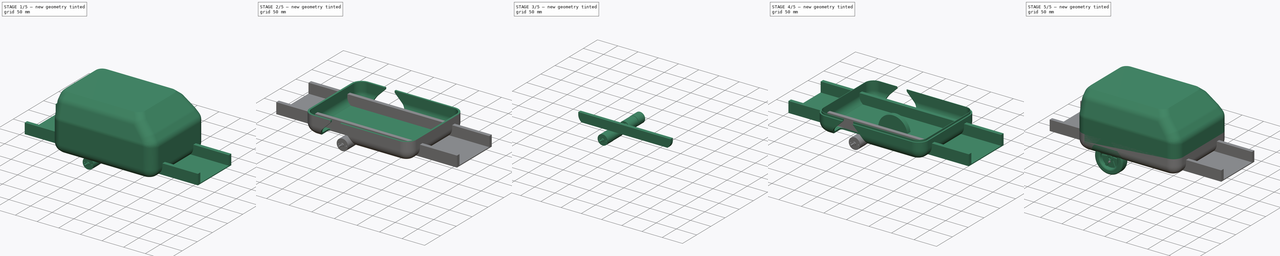
[diagram: build sequence overview — one tinted view per stage of 5, left to right]
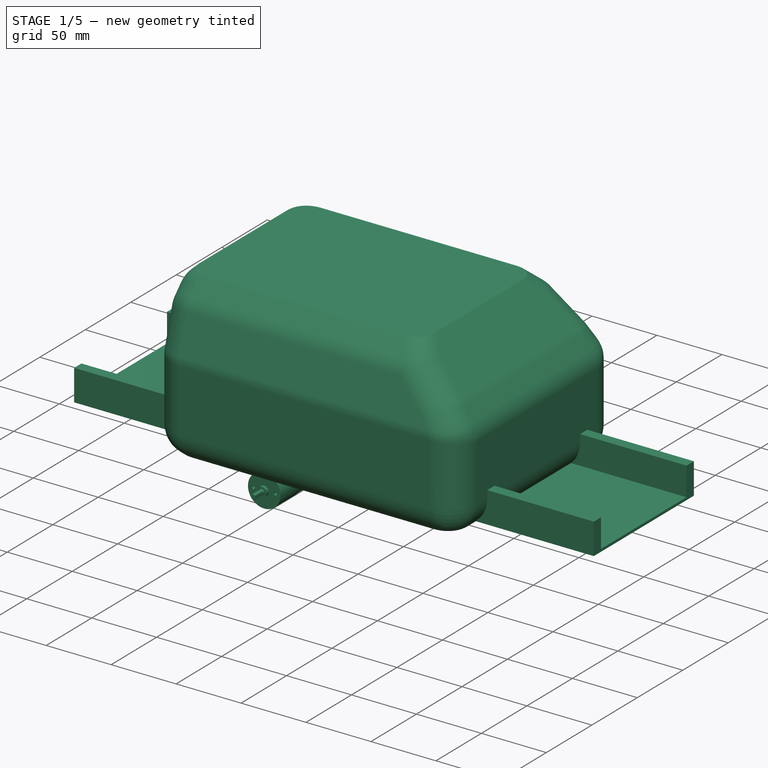
[diagram: stage 1 of 5 — iso view after this stage's code; geometry added in this stage tinted green]
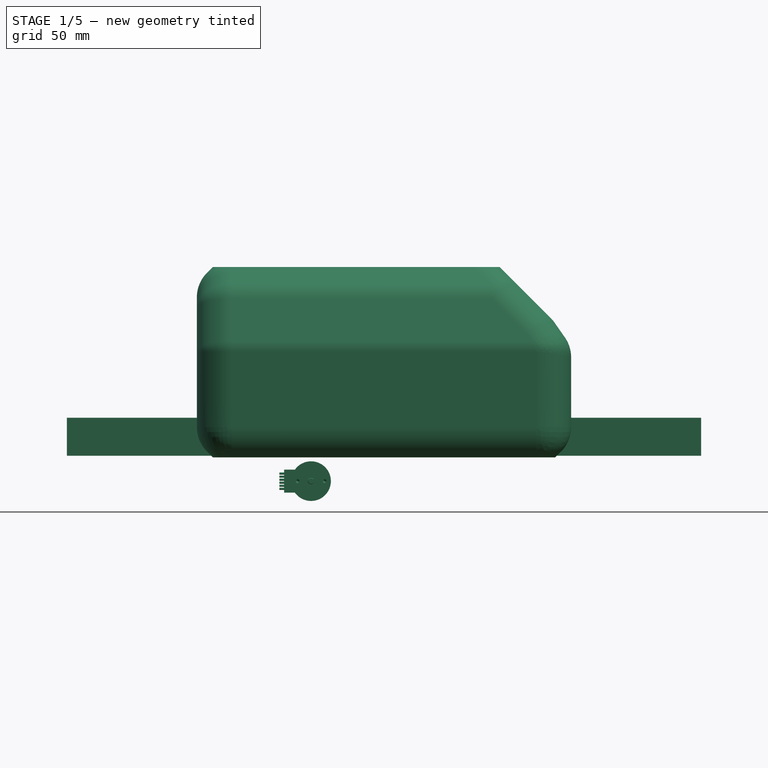
[diagram: stage 1 of 5 — front view after this stage's code; geometry added in this stage tinted green]
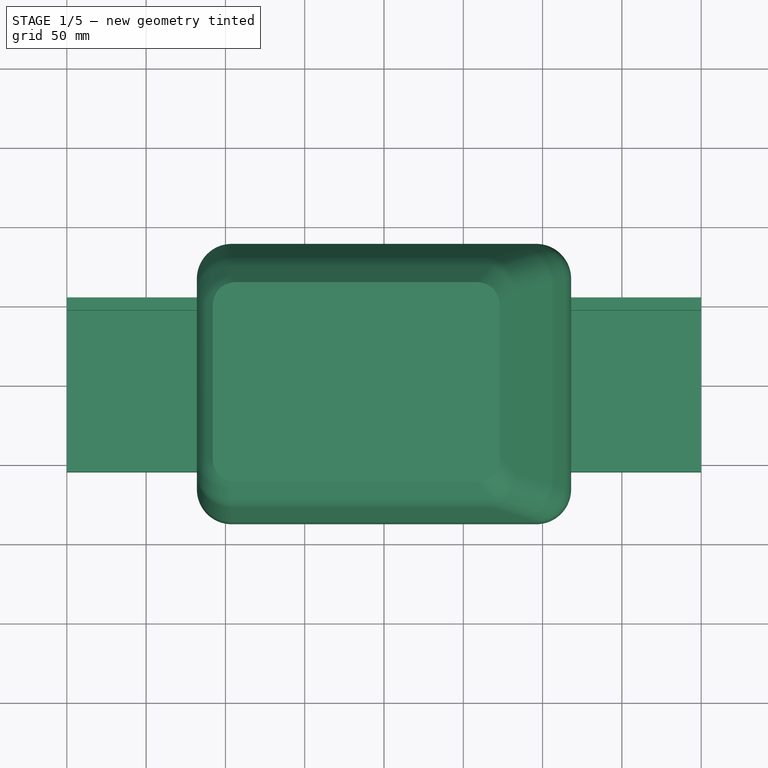
[diagram: stage 1 of 5 — top view after this stage's code; geometry added in this stage tinted green]
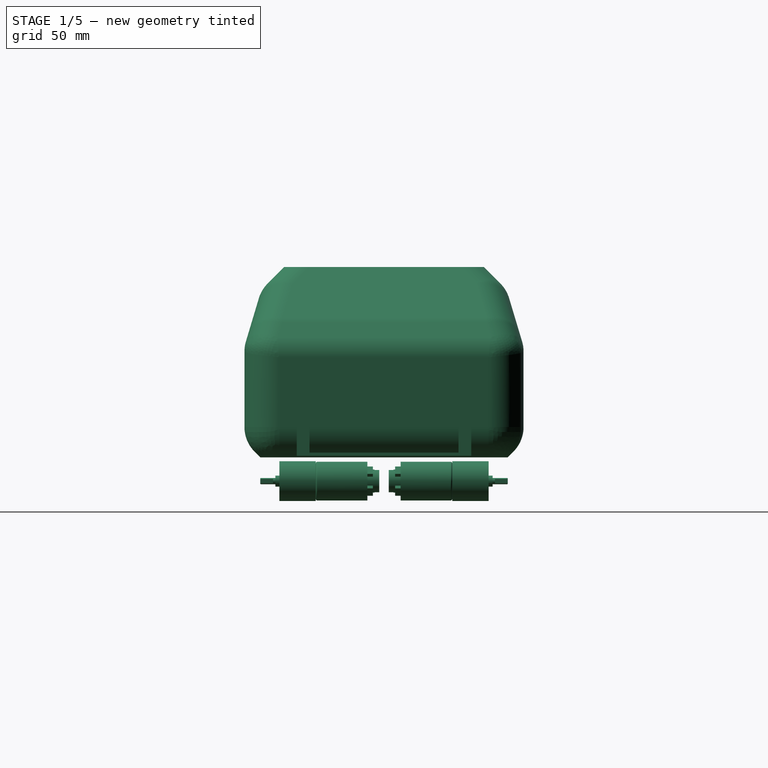
[diagram: stage 1 of 5 — right view after this stage's code; geometry added in this stage tinted green]
FCSTD DOCUMENT  (FreeCAD 0.20R29177 +426 (Git))
Label: bot_4
License: All rights reserved
LicenseURL: http://en.wikipedia.org/wiki/All_rights_reserved
objects: Part::Feature×37, Part::FeaturePython×11, Sketcher::SketchObject×10, PartDesign::Body×8, PartDesign::Pad×7, PartDesign::Pocket×4, PartDesign::Fillet×4, PartDesign::FeatureBase×4, PartDesign::Chamfer×3, PartDesign::Mirrored×2, App::DocumentObjectGroup×2, PartDesign::Thickness×2, Part::Compound2×2, Part::Plane×1, PartDesign::PolarPattern×1, App::Part×1, Part::Mirroring×1, Part::MultiFuse×1, Part::Cut×1
note: 117 computed .brp shape members not serialized (recipe doc carries the construction recipe); baked Part::Feature solids carry a one-line shape summary decoded from their .brp

FEATURE [Sketcher::SketchObject] Sketch
  FullyConstrained = true
  MapMode = 5
  Support = -> [XY_Plane]
  sketch-geometry (4):
    g0: LineSegment StartX=-118 StartY=88 StartZ=0 EndX=118 EndY=88 EndZ=0
    g1: LineSegment StartX=118 StartY=88 StartZ=0 EndX=118 EndY=-88 EndZ=0
    g2: LineSegment StartX=118 StartY=-88 StartZ=0 EndX=-118 EndY=-88 EndZ=0
    g3: LineSegment StartX=-118 StartY=-88 StartZ=0 EndX=-118 EndY=88 EndZ=0
  constraints (11):
    c: Coincident(g0,g1)
    c: Coincident(g1,g2)
    c: Coincident(g2,g3)
    c: Coincident(g3,g0)
    c: Horizontal(g0)
    c: Horizontal(g2)
    c: Vertical(g1)
    c: Vertical(g3)
    c: Symmetric(g0,g1,g-1)
    c: DistanceX(g0,g0) = 236
    c: DistanceY(g3,g3) = 176
FEATURE [PartDesign::Pad] Pad
  Direction = (0,0,1)
  Length = 120
  Length2 = 10
  Profile = -> Sketch
  ReferenceAxis = -> Sketch [N_Axis]
  Type = 0
FEATURE [Sketcher::SketchObject] Sketch001
  FullyConstrained = true
  MapMode = 5
  Placement = pos=(0,-88,0) rot=(1,0,0;1.5708rad)
  Support = -> [Pad]
  sketch-geometry (1):
    g0: Circle CenterX=-46 CenterY=-8 CenterZ=0 NormalX=0 NormalY=0 NormalZ=1 AngleXU=0 Radius=38
  constraints (3):
    c: DistanceY(g0,g-1) = 8
    c: DistanceX(g0,g-1) = 46
    c: Diameter(g0) = 76
FEATURE [PartDesign::Chamfer] Chamfer
  Angle = 45
  Base = -> Pad [Edge10,Edge4]
  BaseFeature = -> Pad
  ChamferType = 1
  FlipDirection = true
  Size = 15
  Size2 = 50
  SupportTransform = false
  UseAllEdges = false
FEATURE [PartDesign::Chamfer] Chamfer001
  Angle = 45
  Base = -> Chamfer [Edge14]
  BaseFeature = -> Chamfer
  ChamferType = 1
  FlipDirection = false
  Size = 50
  Size2 = 35
  SupportTransform = false
  UseAllEdges = false
FEATURE [Part::Feature] L298N_Motor_Driver
  Placement = pos=(-31.3884,-18.295,6.51084) rot=(0.57735,0.57735,0.57735;2.0944rad)
  shape: bbox 43 x 43 x 28.01 mm, 1116 faces, 0 solids (baked)
FEATURE [Part::Feature] Feature  label="Arduino nano001"
  Placement = pos=(29,23,28) rot=(0,0.707107,0.707107;3.14159rad)
  shape: bbox 44.95 x 17.81 x 20.74 mm, 6942 faces, 133 solids (baked)
FEATURE [Part::Feature] Feature001  label="Raspberry Pi 4 Model B001"
  Placement = pos=(61,-16,5) rot=(0,0.707107,0.707107;3.14159rad)
  shape: bbox 89 x 58.41 x 19.91 mm, 10487 faces, 109 solids (baked)
FEATURE [PartDesign::Chamfer] Chamfer002
  Angle = 45
  Base = -> Chamfer001 [Face2,Face9]
  BaseFeature = -> Chamfer001
  ChamferType = 2
  FlipDirection = false
  Size = 10
  Size2 = 1
  SupportTransform = false
  UseAllEdges = false
FEATURE [PartDesign::Fillet] Fillet
  Base = -> Chamfer002 [Edge30,Edge23,Edge22,Edge27,Edge21,Edge26,Edge19,Edge16,Edge18,Edge4,Edge5,Edge13,Edge3,Edge20,Edge31,Edge14,Edge35,Edge34,Edge38,Edge24,Edge25,Edge7,Edge8,Edge12,Edge6,Edge11,Edge9,Edge2,Edge1,Edge15,Edge33]
  BaseFeature = -> Chamfer002
  Radius = 22
  SupportTransform = false
  UseAllEdges = false
FEATURE [Part::FeaturePython] Slice002  # WARN: FeaturePython — macro-defined, semantics opaque (R4)
  Base = -> Fillet
  Mode = 1
  Tolerance = 0
  Tools = -> [Plane001]
FEATURE [Sketcher::SketchObject] Sketch014
  FullyConstrained = true
  MapMode = 5
  Placement = pos=(0,0,0) rot=(0.57735,0.57735,0.57735;2.0944rad)
  Support = -> [YZ_Plane009]
  sketch-geometry (4):
    g0: LineSegment StartX=50 StartY=2 StartZ=0 EndX=42 EndY=2 EndZ=0
    g1: LineSegment StartX=42 StartY=2 StartZ=0 EndX=42 EndY=25 EndZ=0
    g2: LineSegment StartX=42 StartY=25 StartZ=0 EndX=50 EndY=25 EndZ=0
    g3: LineSegment StartX=50 StartY=25 StartZ=0 EndX=50 EndY=2 EndZ=0
  constraints (12):
    c: Coincident(g0,g1)
    c: Coincident(g1,g2)
    c: Coincident(g2,g3)
    c: Coincident(g3,g0)
    c: Horizontal(g0)
    c: Horizontal(g2)
    c: Vertical(g1)
    c: Vertical(g3)
    c: DistanceX(g-1,g0) = 50
    c: DistanceY(g-1,g0) = 2
    c: DistanceX(g2,g2) = 8
    c: DistanceY(g-1,g1) = 25
FEATURE [PartDesign::Body] Body008
  BaseFeature = -> Cut
  Group = -> [BaseFeature,Sketch014]
  Origin = -> Origin009
  Tip = -> BaseFeature
FEATURE [Sketcher::SketchObject] Sketch015
  FullyConstrained = true
  MapMode = 5
  Placement = pos=(0,0,0) rot=(0.57735,0.57735,0.57735;2.0944rad)
  Support = -> [YZ_Plane010]
  sketch-geometry (8):
    g0: LineSegment StartX=55 StartY=25 StartZ=0 EndX=47 EndY=25 EndZ=0
    g1: LineSegment StartX=47 StartY=25 StartZ=0 EndX=47 EndY=3 EndZ=0
    g2: LineSegment StartX=47 StartY=3 StartZ=0 EndX=-47 EndY=3 EndZ=0
    g3: LineSegment StartX=-47 StartY=3 StartZ=0 EndX=-47 EndY=25 EndZ=0
    g4: LineSegment StartX=-47 StartY=25 StartZ=0 EndX=-55 EndY=25 EndZ=0
    g5: LineSegment StartX=-55 StartY=25 StartZ=0 EndX=-55 EndY=1 EndZ=0
    g6: LineSegment StartX=-55 StartY=1 StartZ=0 EndX=55 EndY=1 EndZ=0
    g7: LineSegment StartX=55 StartY=1 StartZ=0 EndX=55 EndY=25 EndZ=0
  constraints (20):
    c: Horizontal(g0)
    c: Coincident(g0,g1)
    c: Vertical(g1)
    c: Coincident(g1,g2)
    c: Coincident(g2,g3)
    c: Coincident(g3,g4)
    c: Coincident(g4,g5)
    c: Coincident(g5,g6)
    c: Coincident(g6,g7)
    c: Coincident(g7,g0)
    c: Vertical(g7)
    c: Symmetric(g0,g4,g-2)
    c: Symmetric(g0,g3,g-2)
    c: Symmetric(g1,g2,g-2)
    c: Symmetric(g6,g5,g-2)
    c: DistanceX(g0,g0) = 8
    c: DistanceY(g-1,g0) = 25
    c: DistanceY(g-1,g1) = 3
    c: DistanceY(g-1,g6) = 1
    c: DistanceX(g-1,g6) = 55
FEATURE [PartDesign::Pad] Pad007
  Direction = (1,-2e-16,3e-16)
  Length = 200
  Length2 = 200
  Placement = pos=(0,0,0) rot=(0.57735,0.57735,0.57735;2.0944rad)
  Profile = -> Sketch015
  ReferenceAxis = -> Sketch015 [N_Axis]
  Type = 4
FEATURE [PartDesign::Body] Body010  label="Base_Groove_Ribs"
  BaseFeature = -> Connect
  Group = -> [BaseFeature004]
  Origin = -> Origin011
  Tip = -> BaseFeature004
FEATURE [PartDesign::Body] Body011
  Origin = -> Origin012
FEATURE [Part::Feature] Feature002  label="65mm wheel"
  Placement = pos=(-46,-88,-15) rot=(0,0,1;4.71239rad)
  shape: bbox 68.08 x 31.85 x 68.08 mm, 3634 faces, 3 solids (baked)
FEATURE [Part::Feature] Solid
  shape: bbox 26.41 x 31 x 26.41 mm, 4 faces (baked)
FEATURE [Part::Feature] Solid001
  shape: bbox 24.4 x 1.5 x 24.4 mm, 3 faces (baked)
FEATURE [Part::Feature] Solid002
  shape: bbox 14 x 7.5 x 14 mm, 3 faces (baked)
FEATURE [Part::Feature] Solid003
  shape: bbox 6.364 x 3.5 x 6.364 mm, 6 faces (baked)
FEATURE [Part::Feature] Solid004
  shape: bbox 6.364 x 3.5 x 6.364 mm, 6 faces (baked)
FEATURE [Part::Feature] Solid005
  shape: bbox 14.5 x 4.5 x 8.5 mm, 6 faces (baked)
FEATURE [Part::Feature] Solid006 .. Solid011  x6 (patterned run collapsed; names and placements below)
  shape: bbox 1.4 x 1.4 x 3 mm, 3 faces (baked)
FEATURE [Part::Feature] Solid012
  shape: bbox 25 x 23 x 25 mm, 7 faces (baked)
FEATURE [Part::Feature] Solid013
  shape: bbox 7 x 2.5 x 7 mm, 3 faces (baked)
FEATURE [Part::Feature] Solid014
  shape: bbox 4 x 9.5 x 4 mm, 6 faces (baked)
FEATURE [Part::Compound2] Compound  label="JGA25-371_12VDC_110RPM"
  Links = -> [Solid,Solid001,Solid002,Solid003,Solid004,Solid005,Solid006,Solid007,Solid008,Solid009,Solid010,Solid011,Solid012,Solid013,Solid014]
  Placement = pos=(-46,-43,-15) rot=(-0.707107,0,-0.707107;3.14159rad)
FEATURE [Part::Feature] Feature003  label="Caster Ball Wheel001"
  Placement = pos=(82,1.07e-14,-34) rot=(0.57735,-0.57735,0.57735;4.18879rad)
  shape: bbox 34.64 x 47.66 x 15.6 mm, 46 faces, 2 solids (baked)
FEATURE [Part::Feature] Feature004  label="LD06_LiDAR002"
  Placement = pos=(-72,-16,116) rot=(0.57735,0.57735,0.57735;2.0944rad)
  shape: bbox 38.6 x 38.6 x 33.37 mm, 248 faces, 4 solids (baked)
FEATURE [Part::Feature] Feature005  label="65mm wheel001"
  Placement = pos=(-46,88,-15) rot=(-0.707107,-0.707107,0;3.14159rad)
  shape: bbox 68.08 x 31.85 x 68.08 mm, 3634 faces, 3 solids (baked)
FEATURE [Part::Feature] Solid015
  shape: bbox 26.41 x 31 x 26.41 mm, 4 faces (baked)
FEATURE [Part::Feature] Solid016
  shape: bbox 24.4 x 1.5 x 24.4 mm, 3 faces (baked)
FEATURE [Part::Feature] Solid017
  shape: bbox 14 x 7.5 x 14 mm, 3 faces (baked)
FEATURE [Part::Feature] Solid018
  shape: bbox 6.364 x 3.5 x 6.364 mm, 6 faces (baked)
FEATURE [Part::Feature] Solid019
  shape: bbox 6.364 x 3.5 x 6.364 mm, 6 faces (baked)
FEATURE [Part::Feature] Solid020
  shape: bbox 14.5 x 4.5 x 8.5 mm, 6 faces (baked)
FEATURE [Part::Feature] Solid021 .. Solid026  x6 (patterned run collapsed; names and placements below)
  shape: bbox 1.4 x 1.4 x 3 mm, 3 faces (baked)
FEATURE [Part::Feature] Solid027
  shape: bbox 25 x 23 x 25 mm, 7 faces (baked)
FEATURE [Part::Feature] Solid028
  shape: bbox 7 x 2.5 x 7 mm, 3 faces (baked)
FEATURE [Part::Feature] Solid029
  shape: bbox 4 x 9.5 x 4 mm, 6 faces (baked)
FEATURE [Part::Compound2] Compound001  label="JGA25-371_12VDC_110RPM001"
  Links = -> [Solid015,Solid016,Solid017,Solid018,Solid019,Solid020,Solid021,Solid022,Solid023,Solid024,Solid025,Solid026,Solid027,Solid028,Solid029]
  Placement = pos=(-46,43,-15) rot=(0,1,0;1.5708rad)
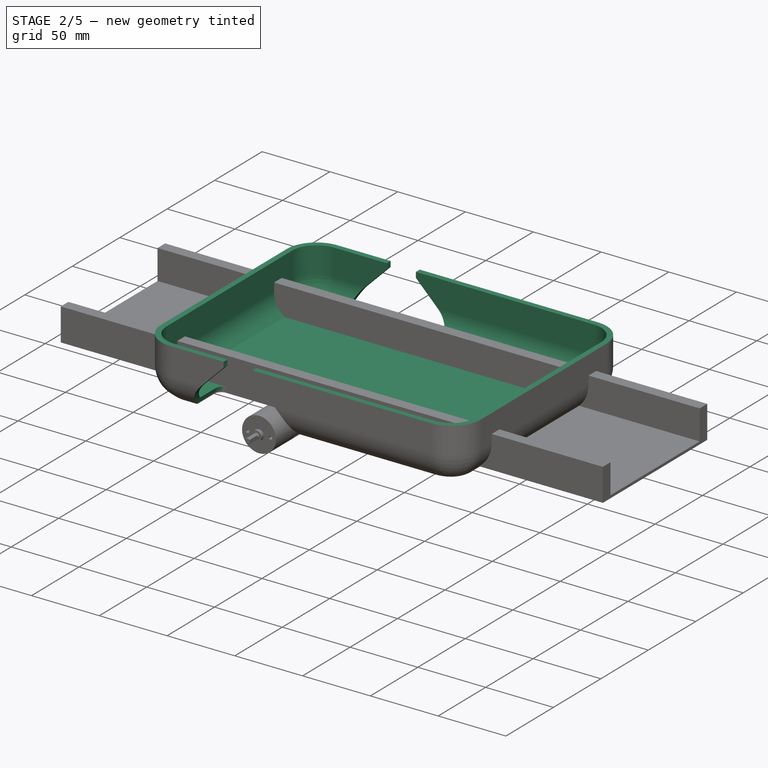
[diagram: stage 2 of 5 — iso view after this stage's code; geometry added in this stage tinted green]
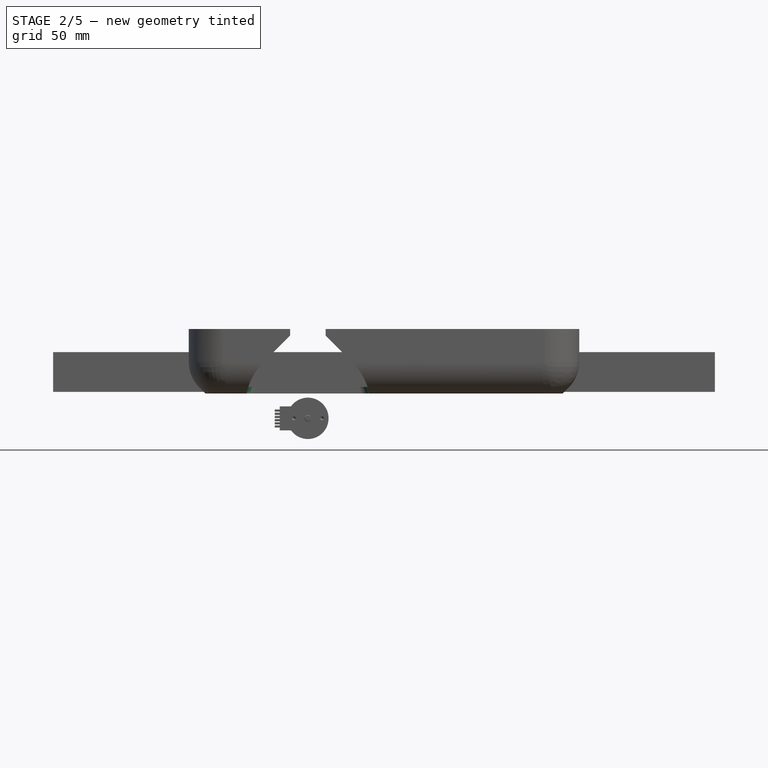
[diagram: stage 2 of 5 — front view after this stage's code; geometry added in this stage tinted green]
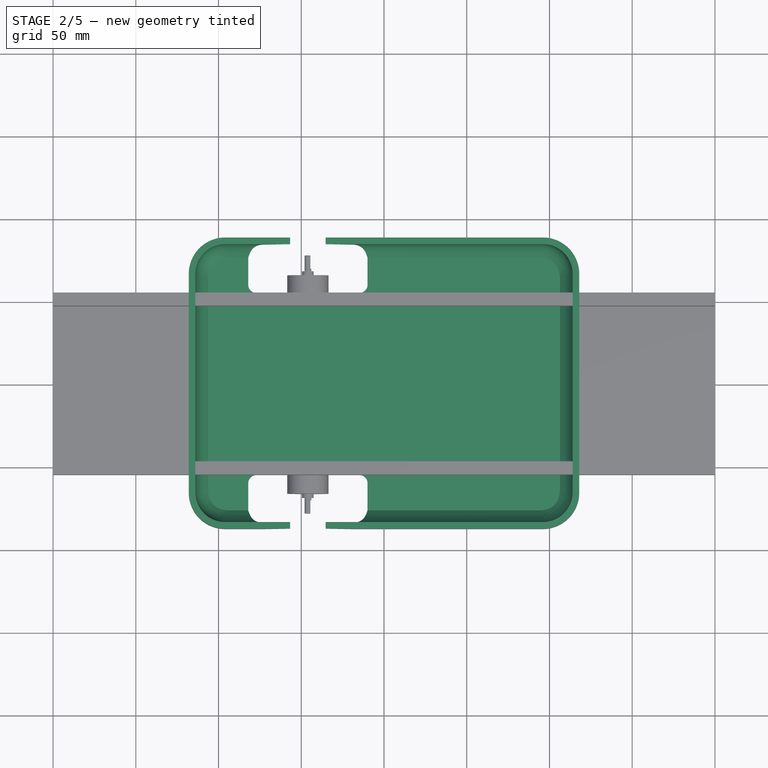
[diagram: stage 2 of 5 — top view after this stage's code; geometry added in this stage tinted green]
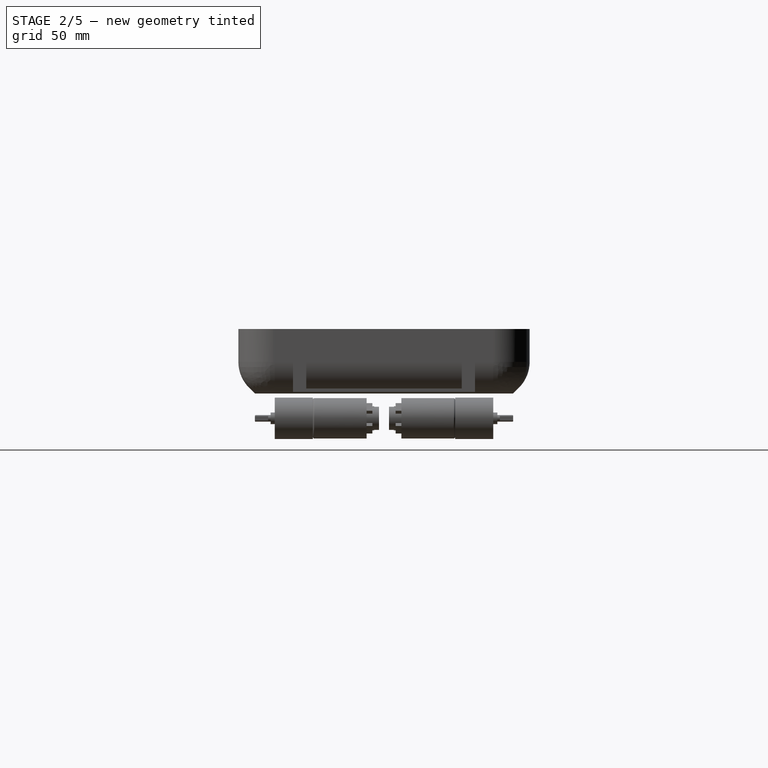
[diagram: stage 2 of 5 — right view after this stage's code; geometry added in this stage tinted green]
FEATURE [Part::FeaturePython] Slice002_child1  label="Slice002.1"  # WARN: FeaturePython — macro-defined, semantics opaque (R4)
  Base = -> Slice002
  FilterType = 1
  Invert = false
  OverrideMaxVal = 0
  WindowFrom = 80
  WindowTo = 100
  items = 1
FEATURE [PartDesign::FeatureBase] BaseFeature003
  BaseFeature = -> Slice002_child1
FEATURE [PartDesign::Body] Body006  label="Cap"
  BaseFeature = -> Slice002_child0
  Group = -> [BaseFeature002,Thickness001,Sketch009,Pocket003]
  Origin = -> Origin007
  Tip = -> Pocket003
FEATURE [PartDesign::Thickness] Thickness002
  Base = -> BaseFeature003 [Face5]
  BaseFeature = -> BaseFeature003
  Intersection = false
  Join = 0
  Mode = 0
  Reversed = true
  SupportTransform = false
  Value = 4
FEATURE [Sketcher::SketchObject] Sketch013
  FullyConstrained = true
  MapMode = 5
  Placement = pos=(0,-88,0) rot=(1,0,0;1.5708rad)
  Support = -> [Thickness002]
  sketch-geometry (3):
    g0: ArcOfCircle CenterX=-46 CenterY=-8 CenterZ=0 NormalX=0 NormalY=0 NormalZ=1 AngleXU=0 Radius=38 StartAngle=2.35619 EndAngle=7.06858
    g1: LineSegment StartX=-72.8701 StartY=18.8701 StartZ=0 EndX=-46 EndY=45.7401 EndZ=0
    g2: LineSegment StartX=-19.1299 StartY=18.8701 StartZ=0 EndX=-46 EndY=45.7401 EndZ=0
  constraints (9):
    c: Diameter(g0) = 76
    c: DistanceX(g0,g-1) = 46
    c: DistanceY(g0,g-1) = 8
    c: Tangent(g0,g2) = -1.5708
    c: Tangent(g1,g0) = 1.5708
    c: Coincident(g1,g0)
    c: Angle(g1) = 0.785398
    c: Angle(g2) = 2.35619
    c: Coincident(g2,g1)
FEATURE [PartDesign::Pocket] Pocket007
  BaseFeature = -> Thickness002
  Direction = (0,1,-2e-16)
  Length = 33
  Length2 = 5
  Profile = -> Sketch013
  ReferenceAxis = -> Sketch013 [N_Axis]
  Type = 0
FEATURE [PartDesign::Mirrored] Mirrored001
  BaseFeature = -> Pocket007
  MirrorPlane = -> XZ_Plane008
  Originals = -> [Pocket007]
FEATURE [PartDesign::Fillet] Fillet003
  Base = -> Mirrored001 [Edge60,Edge64,Edge41,Edge38]
  BaseFeature = -> Mirrored001
  Radius = 5
  SupportTransform = false
  UseAllEdges = false
FEATURE [PartDesign::Pad] Pad005
  BaseFeature = -> Fillet003
  Direction = (0,0,1)
  Length = 4
  Length2 = 10
  Profile = -> Fillet003 [Face59]
  Type = 0
FEATURE [PartDesign::Pad] Pad006
  BaseFeature = -> Pad005
  Direction = (0,0,1)
  Length = 4
  Length2 = 10
  Profile = -> Pad005 [Face53]
  Type = 0
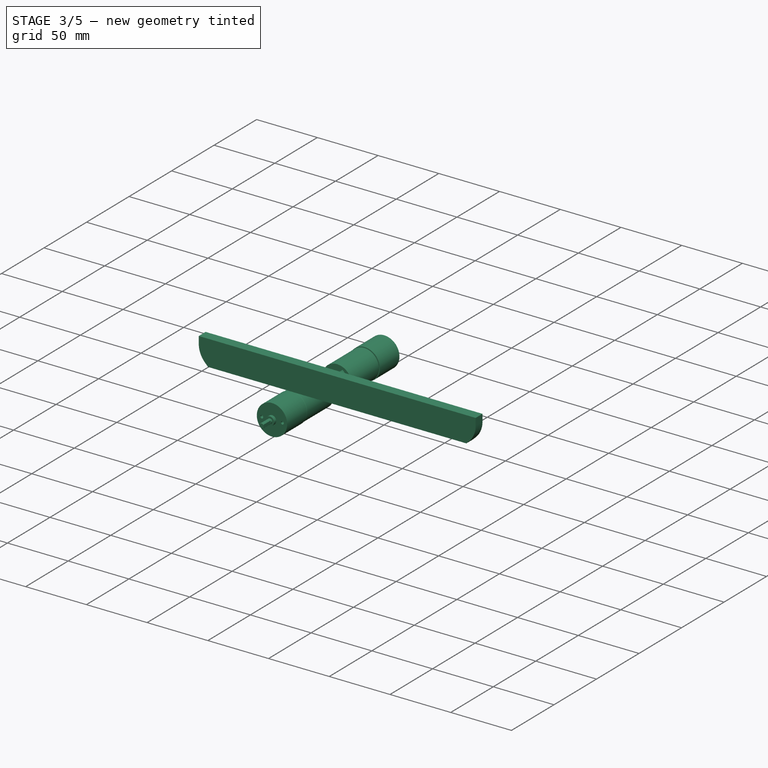
[diagram: stage 3 of 5 — iso view after this stage's code; geometry added in this stage tinted green]
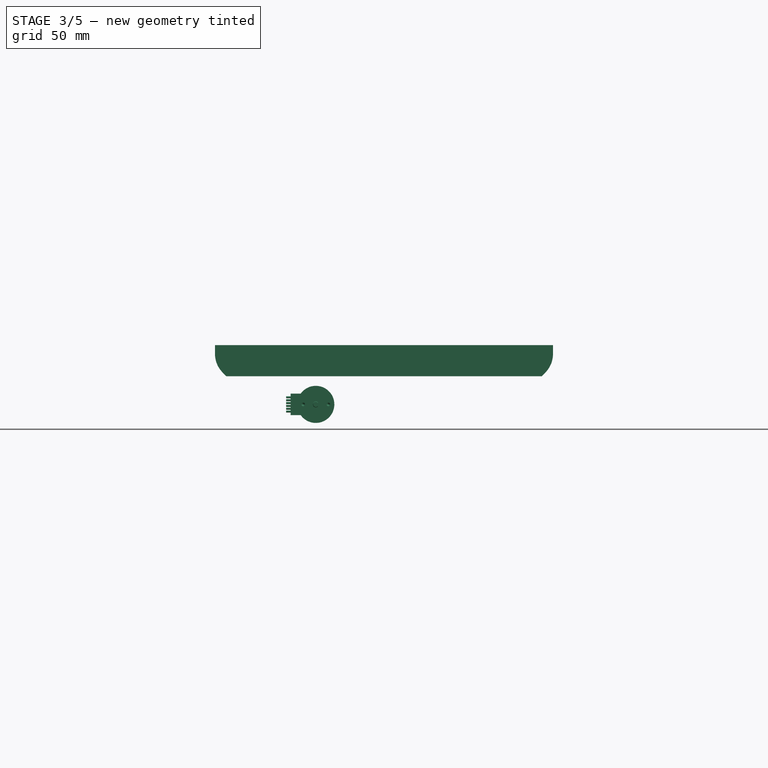
[diagram: stage 3 of 5 — front view after this stage's code; geometry added in this stage tinted green]
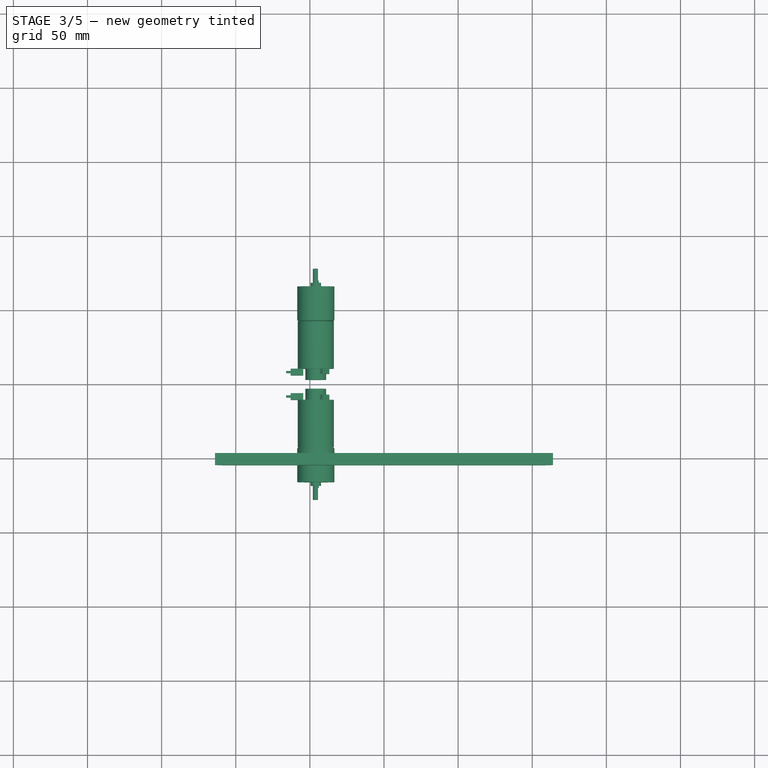
[diagram: stage 3 of 5 — top view after this stage's code; geometry added in this stage tinted green]
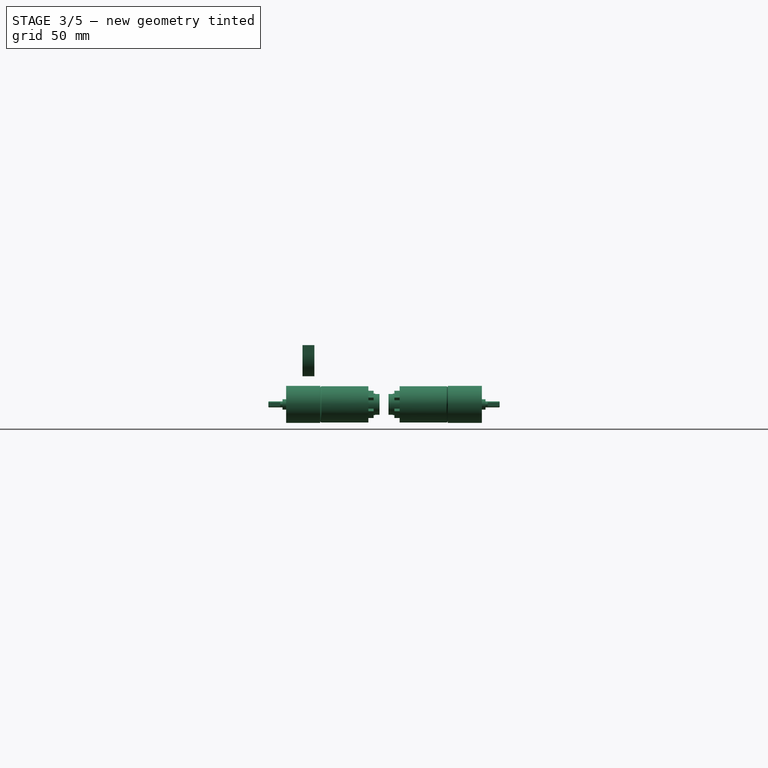
[diagram: stage 3 of 5 — right view after this stage's code; geometry added in this stage tinted green]
FEATURE [Part::FeaturePython] Slice002_child0  label="Slice002.0"  # WARN: FeaturePython — macro-defined, semantics opaque (R4)
  Base = -> Slice002
  FilterType = 1
  Invert = false
  OverrideMaxVal = 0
  WindowFrom = 80
  WindowTo = 100
  items = 0
FEATURE [App::DocumentObjectGroup] GrExplode_Slice002  label="Exploded Slice002"
  Group = -> [Slice002_child0,Slice002_child1]
FEATURE [PartDesign::FeatureBase] BaseFeature002
  BaseFeature = -> Slice002_child0
FEATURE [PartDesign::Thickness] Thickness001
  Base = -> BaseFeature002 [Face24]
  BaseFeature = -> BaseFeature002
  Intersection = false
  Join = 0
  Mode = 0
  Reversed = true
  SupportTransform = false
  Value = 3
FEATURE [Sketcher::SketchObject] Sketch009
  FullyConstrained = true
  MapMode = 5
  Placement = pos=(118,0,0) rot=(0.57735,0.57735,0.57735;2.0944rad)
  Support = -> [Thickness001]
  sketch-geometry (4):
    g0: ArcOfCircle CenterX=-25 CenterY=50 CenterZ=0 NormalX=0 NormalY=0 NormalZ=1 AngleXU=0 Radius=5 StartAngle=1.5708 EndAngle=4.71239
    g1: ArcOfCircle CenterX=25 CenterY=50 CenterZ=0 NormalX=0 NormalY=0 NormalZ=1 AngleXU=0 Radius=5 StartAngle=4.71239 EndAngle=7.85398
    g2: LineSegment StartX=-25 StartY=45 StartZ=0 EndX=25 EndY=45 EndZ=0
    g3: LineSegment StartX=25 StartY=55 StartZ=0 EndX=-25 EndY=55 EndZ=0
  constraints (9):
    c: Tangent(g0,g2) = -1.5708
    c: Tangent(g2,g1) = -1.5708
    c: Tangent(g1,g3) = -1.5708
    c: Tangent(g3,g0) = -1.5708
    c: Equal(g0,g1)
    c: Diameter(g0) = 10
    c: Symmetric(g0,g1,g-2)
    c: DistanceX(g3,g3) = 50
    c: DistanceY(g-1,g1) = 55
FEATURE [PartDesign::Pocket] Pocket003
  BaseFeature = -> Thickness001
  Direction = (-1,0,0)
  Length = 1
  Length2 = 5
  Profile = -> Sketch009
  ReferenceAxis = -> Sketch009 [N_Axis]
  TaperAngle = -45
  Type = 0
FEATURE [PartDesign::Fillet] Fillet004
  Base = -> Pad006 [Edge137,Edge109,Edge125,Edge93]
  BaseFeature = -> Pad006
  Radius = 5
  SupportTransform = false
  UseAllEdges = false
FEATURE [PartDesign::Body] Body007  label="Base001"
  BaseFeature = -> Slice002_child1
  Group = -> [BaseFeature003,Thickness002,Sketch013,Pocket007,Mirrored001,Fillet003,Pad005,Pad006,Fillet004]
  Origin = -> Origin008
  Tip = -> Fillet004
FEATURE [Part::Cut] Cut  label="Base001_Groove"
  Base = -> Body007
  Tool = -> Body006
FEATURE [PartDesign::FeatureBase] BaseFeature
  BaseFeature = -> Cut
FEATURE [PartDesign::Body] Body009
  Group = -> [Sketch015,Pad007]
  Origin = -> Origin010
  Tip = -> Pad007
FEATURE [Part::FeaturePython] Slice003  # WARN: FeaturePython — macro-defined, semantics opaque (R4)
  Base = -> Pad007
  Mode = 1
  Tolerance = 0
  Tools = -> [Body008]
FEATURE [App::DocumentObjectGroup] GrExplode_Slice003  label="Exploded Slice003"
  Group = -> [Slice003_child0,Slice003_child1,Slice003_child3]
FEATURE [Part::FeaturePython] Slice003_child4  label="Slice003.4"  # WARN: FeaturePython — macro-defined, semantics opaque (R4)
  Base = -> Slice003
  FilterType = 1
  Invert = false
  OverrideMaxVal = 0
  WindowFrom = 80
  WindowTo = 100
  items = 4
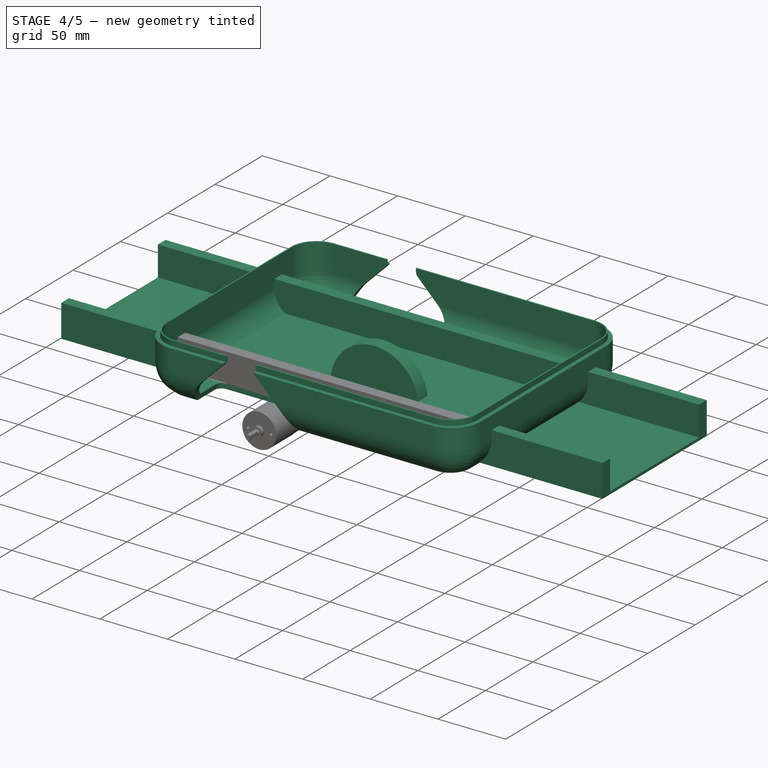
[diagram: stage 4 of 5 — iso view after this stage's code; geometry added in this stage tinted green]
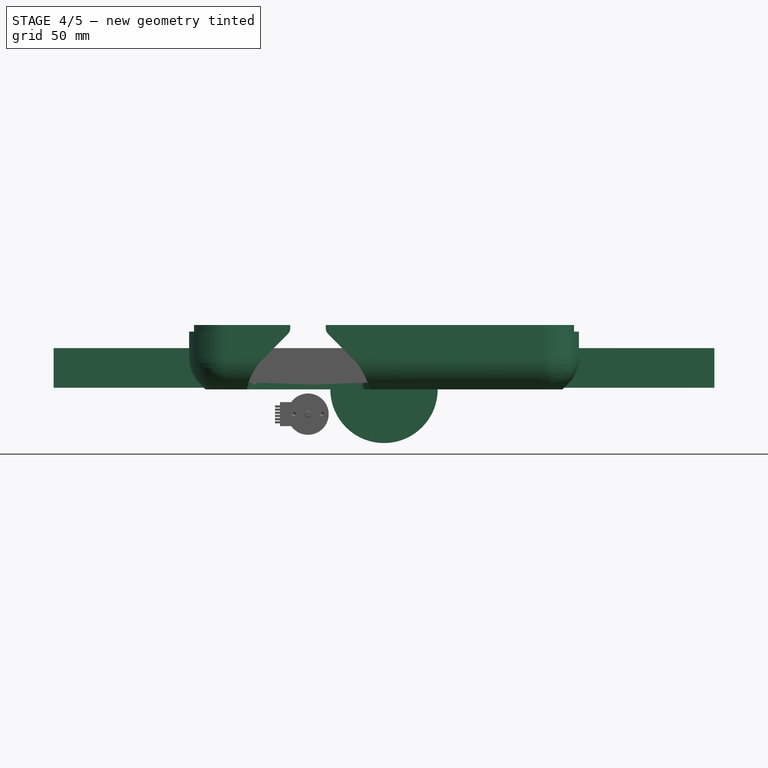
[diagram: stage 4 of 5 — front view after this stage's code; geometry added in this stage tinted green]
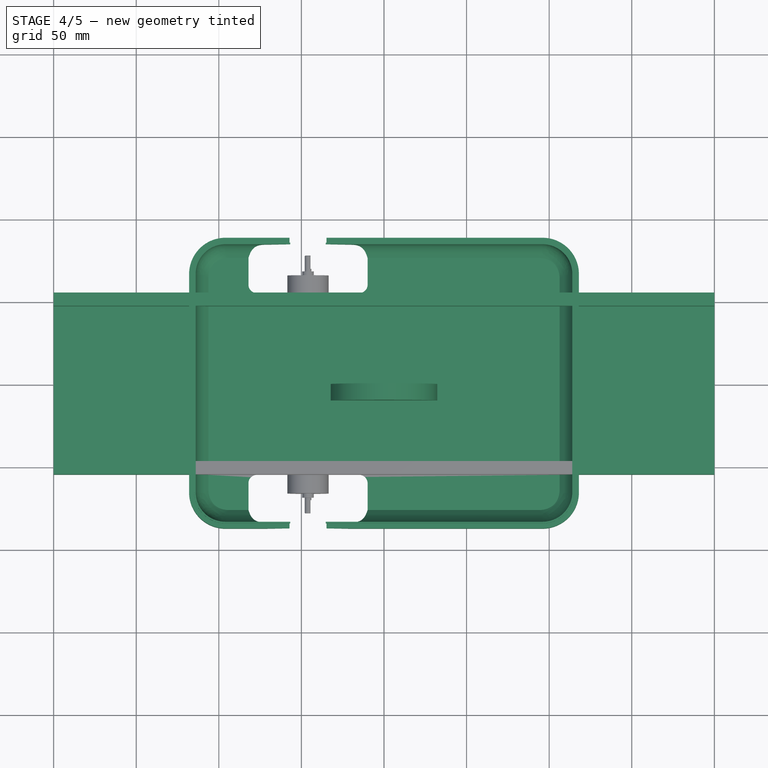
[diagram: stage 4 of 5 — top view after this stage's code; geometry added in this stage tinted green]
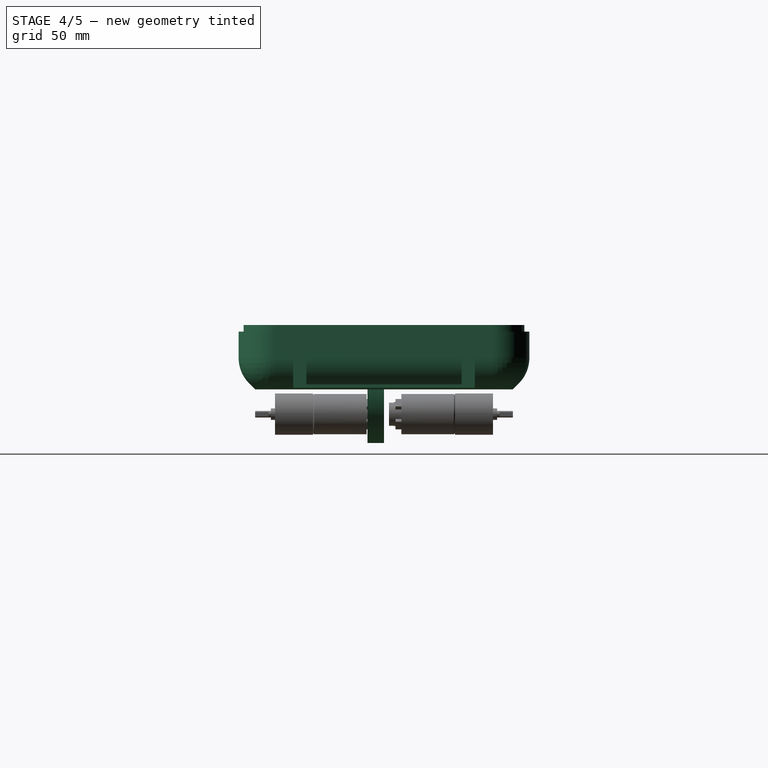
[diagram: stage 4 of 5 — right view after this stage's code; geometry added in this stage tinted green]
FEATURE [Sketcher::SketchObject] Sketch003
  FullyConstrained = true
  MapMode = 5
  Placement = pos=(0,0,0) rot=(1,0,0;1.5708rad)
  Support = -> [XZ_Plane004]
  sketch-geometry (1):
    g0: Circle CenterX=0 CenterY=0 CenterZ=0 NormalX=0 NormalY=0 NormalZ=1 AngleXU=0 Radius=32.5
  constraints (2):
    c: Coincident(g0,g-1)
    c: Diameter(g0) = 65
FEATURE [PartDesign::Pad] Pad002
  Direction = (0,-1,2e-16)
  Length = 10
  Length2 = 10
  Placement = pos=(0,0,0) rot=(1,0,0;1.5708rad)
  Profile = -> Sketch003
  ReferenceAxis = -> Sketch003 [N_Axis]
  Type = 0
FEATURE [Sketcher::SketchObject] Sketch004
  FullyConstrained = true
  MapMode = 5
  Placement = pos=(0,0,0) rot=(1,0,0;1.5708rad)
  Support = -> [XZ_Plane004]
  sketch-geometry (1):
    g0: Circle CenterX=0 CenterY=0 CenterZ=0 NormalX=0 NormalY=0 NormalZ=1 AngleXU=0 Radius=20
  constraints (2):
    c: Coincident(g0,g-1)
    c: Diameter(g0) = 40
FEATURE [PartDesign::Pocket] Pocket002
  BaseFeature = -> Pad002
  Direction = (0,1,-2e-16)
  Length = 8
  Length2 = 5
  Placement = pos=(0,0,0) rot=(1,0,0;1.5708rad)
  Profile = -> Sketch004
  ReferenceAxis = -> Sketch004 [N_Axis]
  Reversed = true
  Type = 0
FEATURE [Part::FeaturePython] Slice003_child0  label="Slice003.0"  # WARN: FeaturePython — macro-defined, semantics opaque (R4)
  Base = -> Slice003
  FilterType = 1
  Invert = false
  OverrideMaxVal = 0
  WindowFrom = 80
  WindowTo = 100
  items = 0
FEATURE [Part::FeaturePython] Slice003_child1  label="Slice003.1"  # WARN: FeaturePython — macro-defined, semantics opaque (R4)
  Base = -> Slice003
  FilterType = 1
  Invert = false
  OverrideMaxVal = 0
  WindowFrom = 80
  WindowTo = 100
  items = 1
FEATURE [Part::FeaturePython] Slice003_child2  label="Slice003.2"  # WARN: FeaturePython — macro-defined, semantics opaque (R4)
  Base = -> Slice003
  FilterType = 1
  Invert = false
  OverrideMaxVal = 0
  WindowFrom = 80
  WindowTo = 100
  items = 2
FEATURE [Part::FeaturePython] Slice003_child3  label="Slice003.3"  # WARN: FeaturePython — macro-defined, semantics opaque (R4)
  Base = -> Slice003
  FilterType = 1
  Invert = false
  OverrideMaxVal = 0
  WindowFrom = 80
  WindowTo = 100
  items = 3
FEATURE [Part::FeaturePython] Connect  # WARN: FeaturePython — macro-defined, semantics opaque (R4)
  Objects = -> [Cut,Slice003_child2,Slice003_child4]
  Tolerance = 0
FEATURE [PartDesign::FeatureBase] BaseFeature004
  BaseFeature = -> Connect
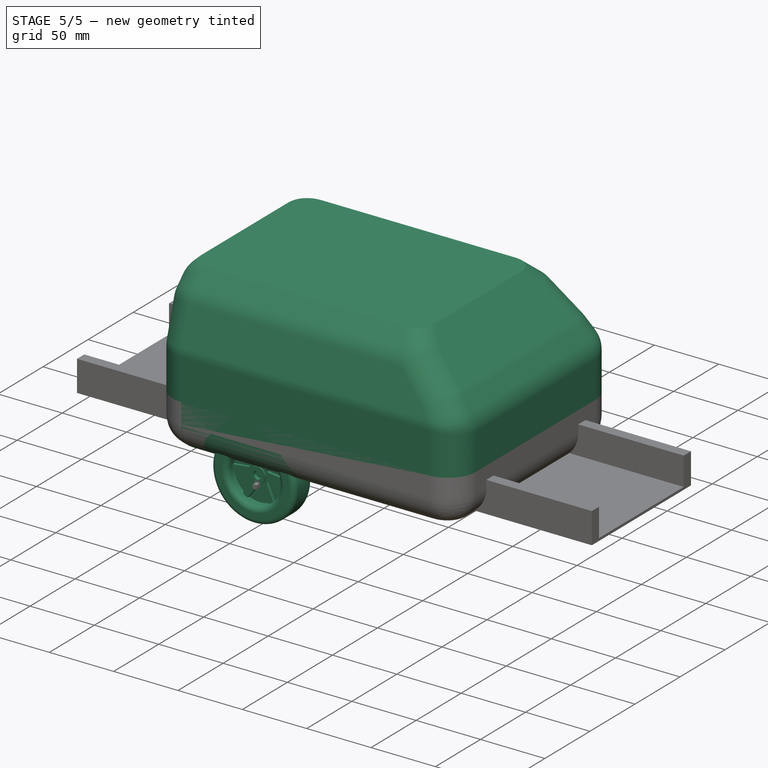
[diagram: stage 5 of 5 — iso view after this stage's code; geometry added in this stage tinted green]
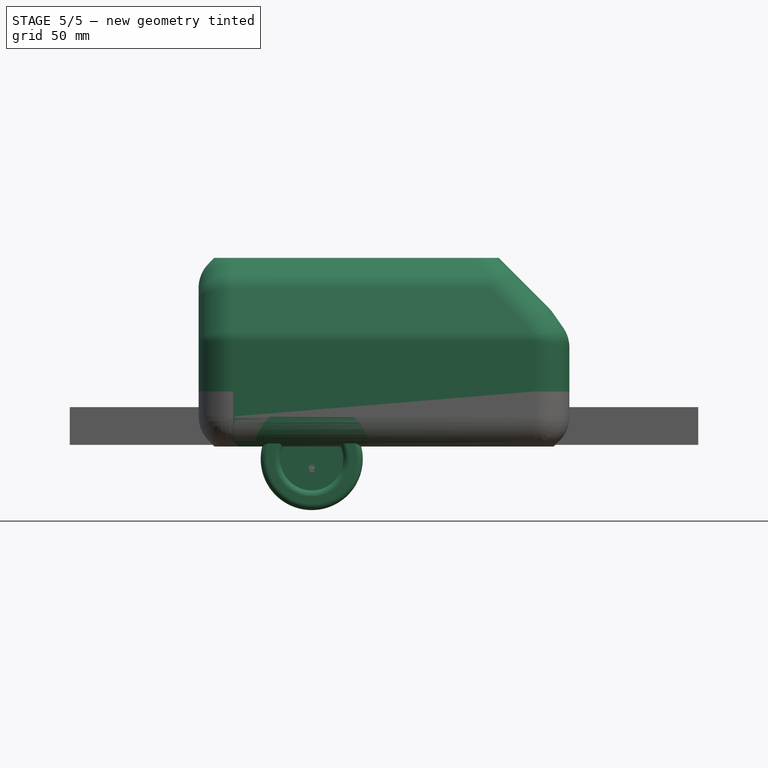
[diagram: stage 5 of 5 — front view after this stage's code; geometry added in this stage tinted green]
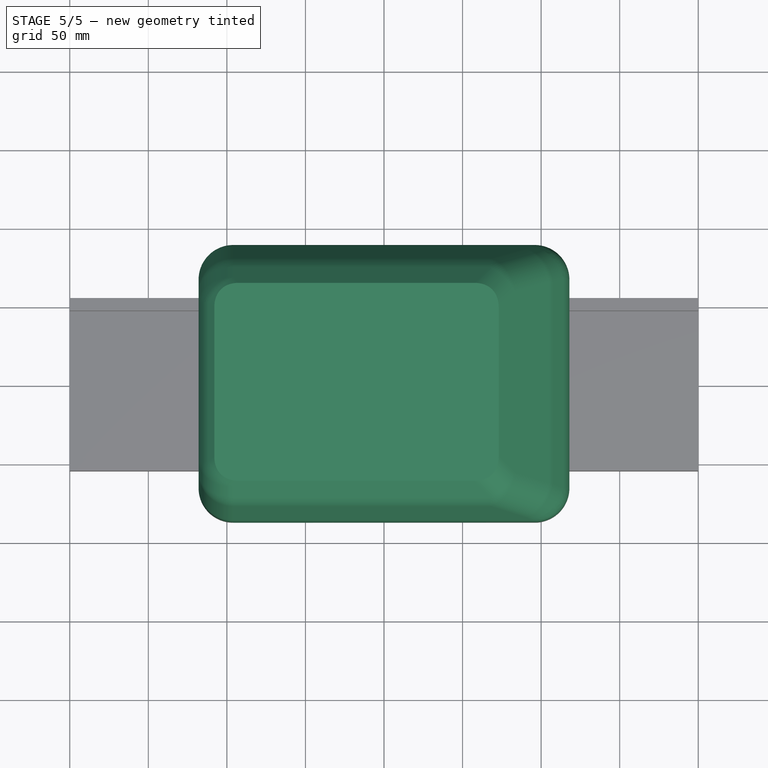
[diagram: stage 5 of 5 — top view after this stage's code; geometry added in this stage tinted green]
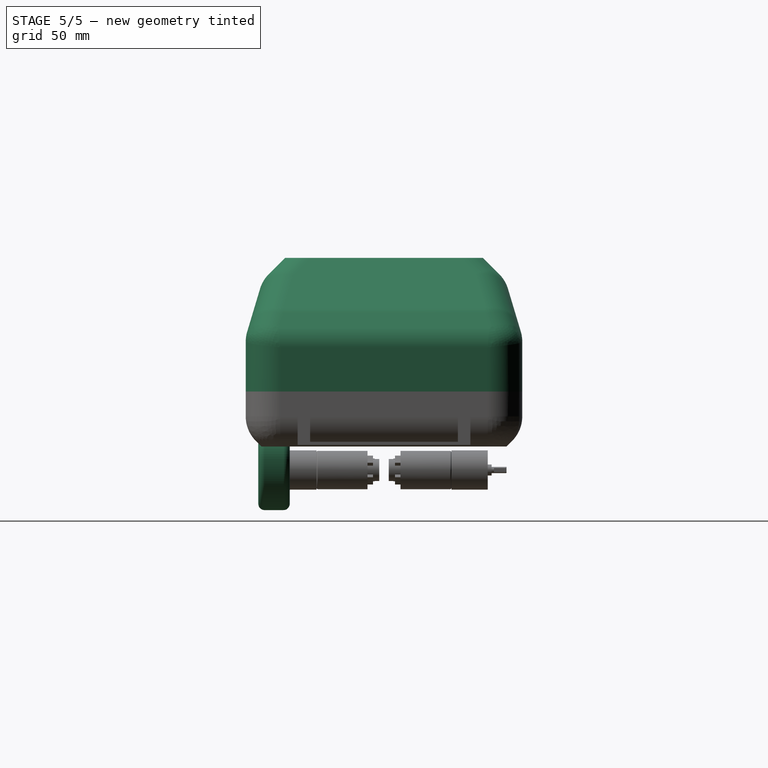
[diagram: stage 5 of 5 — right view after this stage's code; geometry added in this stage tinted green]
FEATURE [Part::Plane] Plane001
  AttacherType = Attacher::AttachEngine3D
  Length = 260
  Placement = pos=(-130,-100,35) rot=(0,0,1;0rad)
  Width = 200
FEATURE [PartDesign::Pocket] Pocket
  BaseFeature = -> Chamfer001
  Direction = (0,1,-2e-16)
  Length = 35
  Length2 = 5
  Profile = -> Sketch001
  ReferenceAxis = -> Sketch001 [N_Axis]
  Type = 0
FEATURE [PartDesign::Mirrored] Mirrored
  BaseFeature = -> Pocket
  MirrorPlane = -> XZ_Plane
  Originals = -> [Pocket]
FEATURE [PartDesign::Fillet] Fillet002
  Base = -> Pocket002 [Face2]
  BaseFeature = -> Pocket002
  Placement = pos=(0,0,0) rot=(1,0,0;1.5708rad)
  Radius = 4
  SupportTransform = false
  UseAllEdges = false
FEATURE [Sketcher::SketchObject] Sketch005
  FullyConstrained = true
  MapMode = 5
  Placement = pos=(0,-8,1.8e-15) rot=(-1,0,0;1.5708rad)
  Support = -> [Fillet002]
  sketch-geometry (2):
    g0: Circle CenterX=0 CenterY=0 CenterZ=0 NormalX=0 NormalY=0 NormalZ=1 AngleXU=0 Radius=6
    g1: Circle CenterX=0 CenterY=0 CenterZ=0 NormalX=0 NormalY=0 NormalZ=1 AngleXU=0 Radius=3
  constraints (4):
    c: Coincident(g0,g-1)
    c: Coincident(g1,g0)
    c: Diameter(g1) = 6
    c: Diameter(g0) = 12
FEATURE [PartDesign::Pad] Pad003
  BaseFeature = -> Fillet002
  Direction = (0,1,-2e-16)
  Length = 3
  Length2 = 10
  Placement = pos=(0,0,0) rot=(1,0,0;1.5708rad)
  Profile = -> Sketch005
  ReferenceAxis = -> Sketch005 [N_Axis]
  Type = 0
FEATURE [Sketcher::SketchObject] Sketch006
  FullyConstrained = false
  MapMode = 5
  Placement = pos=(0,-8,1.8e-15) rot=(-1,0,0;1.5708rad)
  Support = -> [Pad003]
  sketch-geometry (4):
    g0: LineSegment StartX=3.64366 StartY=4 StartZ=0 EndX=3.64366 EndY=-4 EndZ=0
    g1: LineSegment StartX=3.64366 StartY=-4 StartZ=0 EndX=21.1042 EndY=-2 EndZ=0
    g2: LineSegment StartX=21.1042 StartY=-2 StartZ=0 EndX=21.1042 EndY=2 EndZ=0
    g3: LineSegment StartX=21.1042 StartY=2 StartZ=0 EndX=3.64366 EndY=4 EndZ=0
  constraints (8):
    c: Coincident(g0,g1)
    c: Coincident(g1,g2)
    c: Coincident(g2,g3)
    c: Coincident(g3,g0)
    c: Symmetric(g2,g1,g-1)
    c: Symmetric(g0,g0,g-1)
    c: DistanceY(g2,g2) = 4
    c: DistanceY(g0,g0) = 8
FEATURE [PartDesign::Pad] Pad004
  BaseFeature = -> Pad003
  Direction = (0,1,-2e-16)
  Length = 2
  Length2 = 10
  Placement = pos=(0,0,0) rot=(1,0,0;1.5708rad)
  Profile = -> Sketch006
  ReferenceAxis = -> Sketch006 [N_Axis]
  Type = 0
FEATURE [PartDesign::PolarPattern] PolarPattern
  Angle = 360
  Axis = -> Sketch006 [N_Axis]
  BaseFeature = -> Pad004
  Occurrences = 6
  Originals = -> [Pad004]
  Placement = pos=(0,0,0) rot=(1,0,0;1.5708rad)
FEATURE [PartDesign::Body] Body003
  Group = -> [Sketch003,Pad002,Sketch004,Pocket002,Fillet002,Sketch005,Pad003,Sketch006,Pad004,PolarPattern]
  Origin = -> Origin004
  Placement = pos=(0,10,0) rot=(0,0,1;0rad)
  Tip = -> PolarPattern
FEATURE [App::Part] Part  label="wheel"
  Group = -> [Body003]
  Origin = -> Origin003
FEATURE [Part::Mirroring] Part__Mirroring  label="Body003 (Mirror #1)"
  Base = (0,0,0)
  Normal = (0,1,0)
  Source = -> Body003
FEATURE [Part::MultiFuse] Fusion  label="Wheel"
  Placement = pos=(-46,-70,-8) rot=(0,0,1;0rad)
  Shapes = -> [Part__Mirroring,Part]
FEATURE [PartDesign::Body] Body
  Group = -> [Sketch,Pad,Sketch001,Chamfer,Chamfer001,Pocket,Mirrored,Chamfer002,Fillet]
  Origin = -> Origin
  Tip = -> Fillet
FEATURE [Part::FeaturePython] Slice  # WARN: FeaturePython — macro-defined, semantics opaque (R4)
  Base = -> Body
  Mode = 1
  Tolerance = 0
  Tools = -> [Plane001]
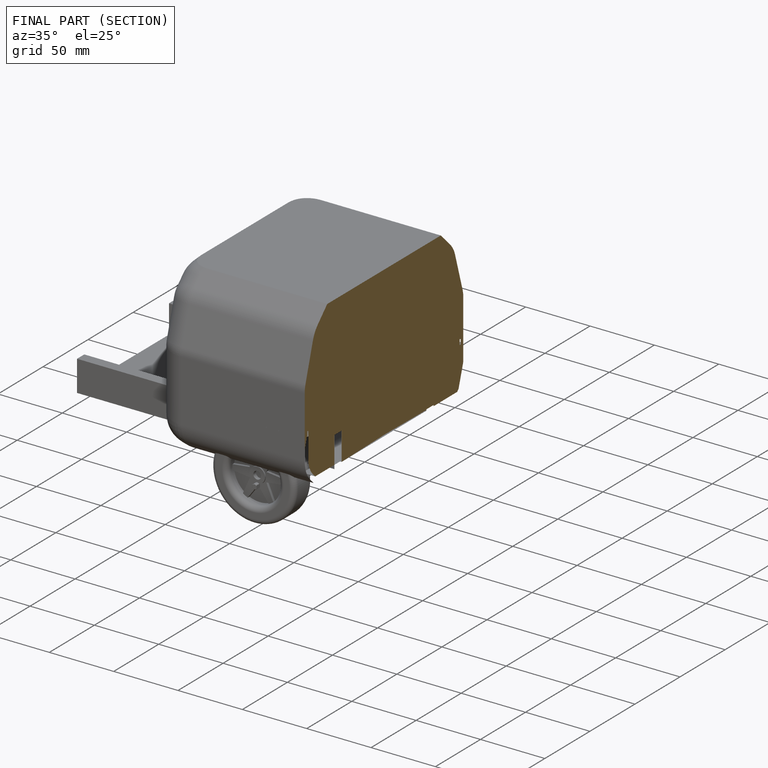
[diagram: finished part — half-section view (interior)]
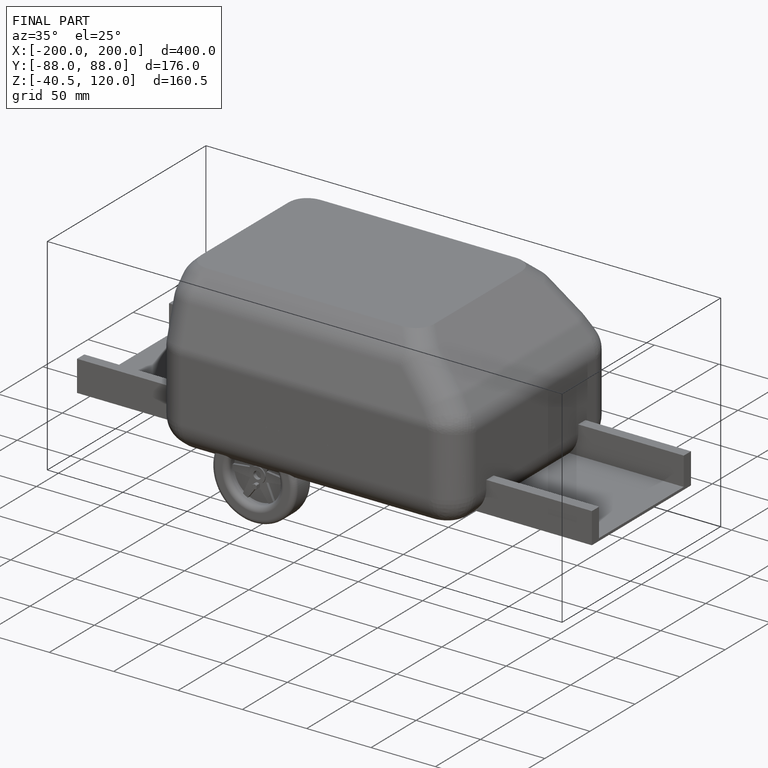
[diagram: finished part — iso view with bounding-box wireframe]
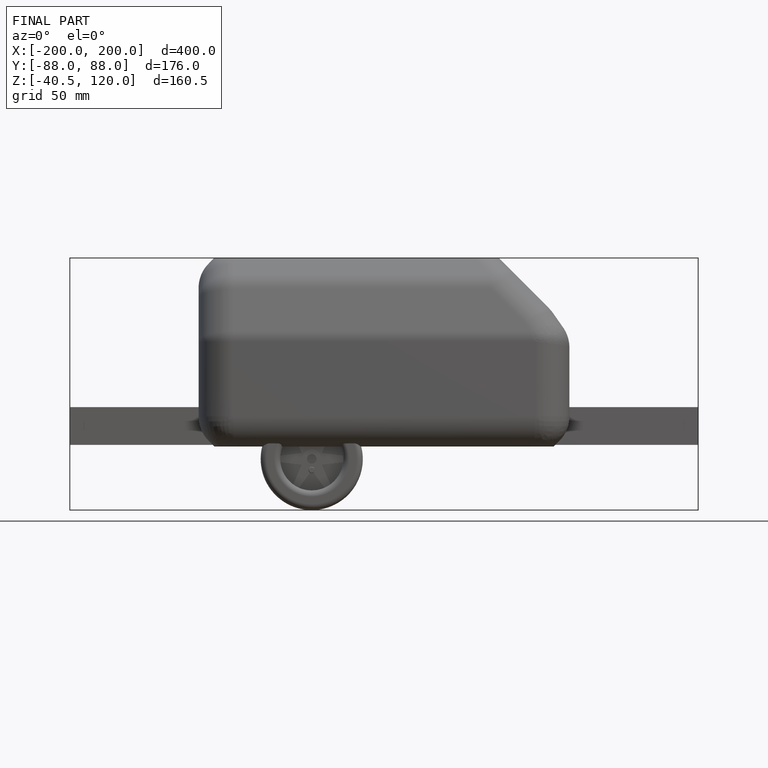
[diagram: finished part — front view with bounding-box wireframe]
